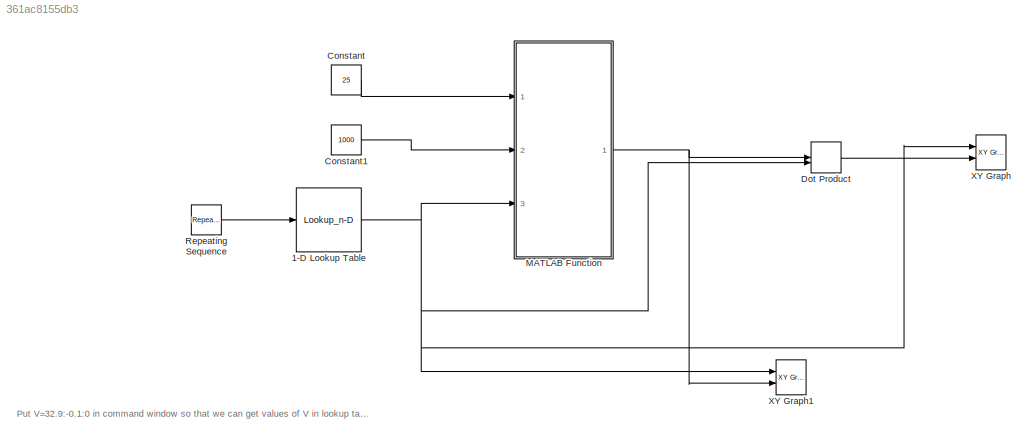
MODEL slx_361ac8155db3
KIND model
CONFIG AbsTol = auto
CONFIG EnableMultiTasking = off
CONFIG FixedStep = auto
CONFIG MaxStep = auto
CONFIG MinStep = auto
CONFIG RelTol = 1e-3
CONFIG SampleTimeConstraint = Unconstrained
CONFIG Solver = VariableStepAuto
CONFIG SolverName = VariableStepAuto
CONFIG StartTime = 0.0
CONFIG StopTime = 10.0
BLOCK [Lookup_n-D] 1-D Lookup Table
  BreakpointsForDimension1 = [1:330]
  InternalRulePriority = Speed
  NumberOfTableDimensions = 1
  Ports = [1, 1]
  RndMeth = Simplest
  Table = V([1:330])
BLOCK [Constant] Constant
  Value = 25
BLOCK [Constant] Constant1
  Value = 1000
BLOCK [DotProduct] Dot Product
  OutDataTypeStr = Inherit: Inherit via internal rule
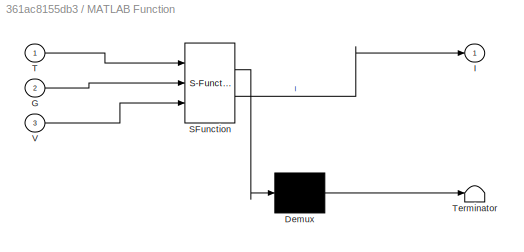
BLOCK [SubSystem] MATLAB Function
  ErrorFcn = Stateflow.Translate.translate
  PermitHierarchicalResolution = ExplicitOnly
  Ports = [3, 1]
  RequestExecContextInheritance = off
  SFBlockType = MATLAB Function
  TreatAsAtomicUnit = on
BLOCK [Demux] MATLAB Function/ Demux 
  Outputs = 1
  Ports = [1, 1]
BLOCK [S-Function] MATLAB Function/ SFunction 
  EnableBusSupport = on
  FunctionName = sf_sfun
  PortCounts = [3 2]
  Ports = [3, 2]
  SFcnIsStateOwnerBlock = off
  SFunctionDeploymentMode = off
  Tag = Stateflow S-Function 2
BLOCK [Terminator] MATLAB Function/ Terminator 
BLOCK [Inport] MATLAB Function/G
  Port = 2
BLOCK [Outport] MATLAB Function/I
BLOCK [Inport] MATLAB Function/T
BLOCK [Inport] MATLAB Function/V
  Port = 3
BLOCK [Reference] Repeating Sequence  REF=simulink/Sources/Repeating
Sequence
  Ports = [0, 1]
  SourceBlock = simulink/Sources/Repeating\nSequence
  SourceProductBaseCode = SL
  SourceType = Repeating table
BLOCK [Reference] XY Graph  REF=simulink/Sinks/XY Graph
  Ports = [2]
  SourceBlock = simulink/Sinks/XY Graph
  SourceProductBaseCode = SL
  SourceType = XY scope.
BLOCK [Reference] XY Graph1  REF=simulink/Sinks/XY Graph
  Ports = [2]
  SourceBlock = simulink/Sinks/XY Graph
  SourceProductBaseCode = SL
  SourceType = XY scope.
ANNOTATION (root): Put V=32.9:-0.1:0 in command window so that we can get values of V in lookup table.
NET 1-D Lookup Table:1 -> Dot Product:2, MATLAB Function:3, XY Graph1:1, XY Graph:1
LINE Constant1:1 -> MATLAB Function:2
LINE Constant:1 -> MATLAB Function:1
LINE Dot Product:1 -> XY Graph:2
NET MATLAB Function:1 -> Dot Product:1, XY Graph1:2
LINE Repeating Sequence:1 -> 1-D Lookup Table:1
note: NET lines group one-source signal fan-out (src -> all destinations, sorted); 1:1 wires keep LINE
CHART MATLAB Function states=1 transitions=1
  STATE_LABEL 'eML_blk_kernel()'
  STATE_LABEL 'SCRIPT:\nfunction I = fcn(T,G,V)\n\nK = 1.38065e-23;\nq = 1.602e-19;\nIscn = 8.21;\nVocn = 32.9;\nKv = -0.123;\nKi = 0.0032;\nNs = 54;\nT = T+273;\nTn = 25+273;\nGn = 1050;\na = 1.3;\nEg = 1.12;\nRs = 0.221;\nRp = 415.405;\nI = 0;\n\nVtn = Ns*(K*Tn/q);\n\nIon = Iscn/((exp(Vocn/(a*Vtn)))-1);\n\nIo_part = ((q*Eg/(a*K))*((1/Tn)-(1/T)));\nIo = Ion*((Tn/T)^3)*exp(Io_part);\nIpvn = Iscn;\nIpv = (Ipvn + Ki*(T-Tn))*(G/Gn);\nVt = Ns...<+87ch>'
CHART  states=0 transitions=0
